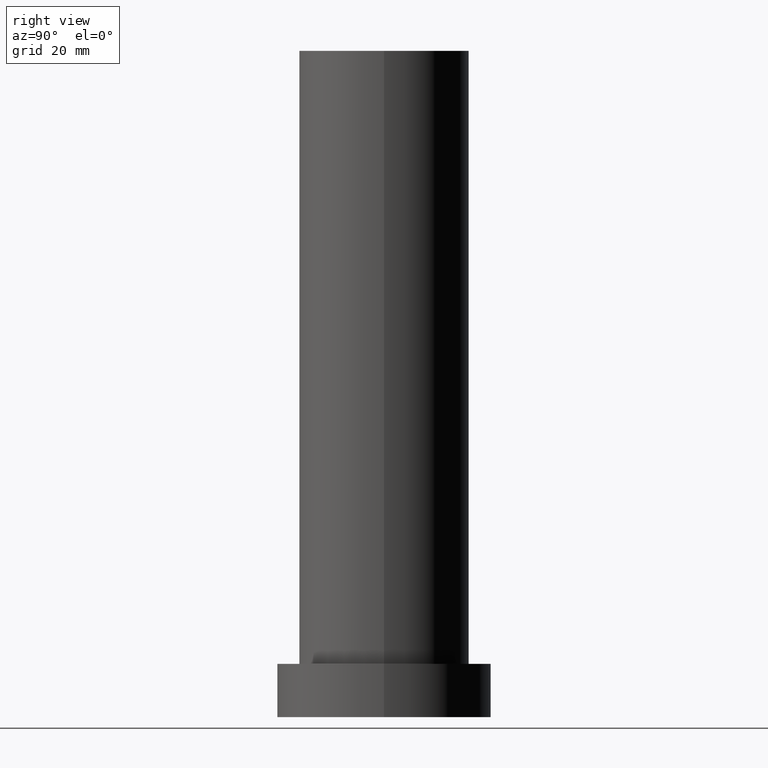
[diagram: clean part render]
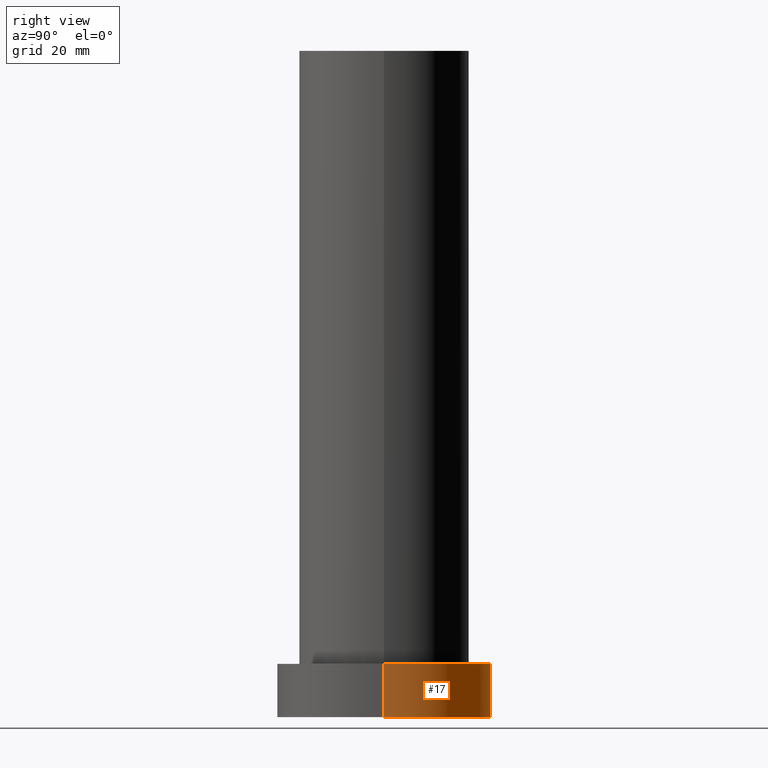
[diagram: same view with one face highlighted and labeled with its STEP entity id]
A machine part, right view. The second image highlights one B-rep face of the part: STEP entity #17.
In plain terms, the highlighted cylindrical surface (partial cylindrical patch) has radius 20 mm, axis along (-0, -0, -1).
Its self-contained STEP definition (entity closure, byte-faithful):
#7 = EDGE_CURVE ( 'NONE', #215, #85, #124, .T. ) ;
#16 = CARTESIAN_POINT ( 'NONE',  ( 20.00000000000000000, 2.449293598294706513E-15, 10.00000000000000000 ) ) ;
#17 = ADVANCED_FACE ( 'NONE', ( #18 ), #83, .T. ) ;
#18 = FACE_OUTER_BOUND ( 'NONE', #99, .T. ) ;
#26 = VERTEX_POINT ( 'NONE', #16 ) ;
#33 = LINE ( 'NONE', #162, #84 ) ;
#35 = EDGE_CURVE ( 'NONE', #26, #119, #74, .T. ) ;
#36 = ORIENTED_EDGE ( 'NONE', *, *, #7, .T. ) ;
#44 = CARTESIAN_POINT ( 'NONE',  ( -20.00000000000000000, 0.000000000000000000, 10.00000000000000000 ) ) ;
#56 = EDGE_CURVE ( 'NONE', #26, #215, #33, .T. ) ;
#63 = DIRECTION ( 'NONE',  ( -0.000000000000000000, -0.000000000000000000, -1.000000000000000000 ) ) ;
#65 = DIRECTION ( 'NONE',  ( -0.000000000000000000, -0.000000000000000000, -1.000000000000000000 ) ) ;
#74 = CIRCLE ( 'NONE', #221, 20.00000000000000000 ) ;
#83 = CYLINDRICAL_SURFACE ( 'NONE', #173, 20.00000000000000000 ) ;
#84 = VECTOR ( 'NONE', #242, 1000.000000000000000 ) ;
#85 = VERTEX_POINT ( 'NONE', #109 ) ;
#96 = VECTOR ( 'NONE', #65, 1000.000000000000000 ) ;
#99 = EDGE_LOOP ( 'NONE', ( #156, #110, #36, #253 ) ) ;
#109 = CARTESIAN_POINT ( 'NONE',  ( -20.00000000000000000, 0.000000000000000000, 0.000000000000000000 ) ) ;
#110 = ORIENTED_EDGE ( 'NONE', *, *, #56, .T. ) ;
#119 = VERTEX_POINT ( 'NONE', #148 ) ;
#121 = CARTESIAN_POINT ( 'NONE',  ( 0.000000000000000000, 0.000000000000000000, 10.00000000000000000 ) ) ;
#124 = CIRCLE ( 'NONE', #133, 20.00000000000000000 ) ;
#133 = AXIS2_PLACEMENT_3D ( 'NONE', #250, #178, #159 ) ;
#145 = CARTESIAN_POINT ( 'NONE',  ( 0.000000000000000000, 0.000000000000000000, 10.00000000000000000 ) ) ;
#148 = CARTESIAN_POINT ( 'NONE',  ( -20.00000000000000000, 0.000000000000000000, 10.00000000000000000 ) ) ;
#156 = ORIENTED_EDGE ( 'NONE', *, *, #35, .F. ) ;
#159 = DIRECTION ( 'NONE',  ( 1.000000000000000000, 0.000000000000000000, 0.000000000000000000 ) ) ;
#161 = DIRECTION ( 'NONE',  ( 0.000000000000000000, 0.000000000000000000, 1.000000000000000000 ) ) ;
#162 = CARTESIAN_POINT ( 'NONE',  ( 20.00000000000000000, 2.449293598294706513E-15, 10.00000000000000000 ) ) ;
#167 = CARTESIAN_POINT ( 'NONE',  ( 20.00000000000000000, 2.449293598294706513E-15, 0.000000000000000000 ) ) ;
#173 = AXIS2_PLACEMENT_3D ( 'NONE', #121, #63, #198 ) ;
#178 = DIRECTION ( 'NONE',  ( 0.000000000000000000, 0.000000000000000000, 1.000000000000000000 ) ) ;
#182 = LINE ( 'NONE', #44, #96 ) ;
#198 = DIRECTION ( 'NONE',  ( -1.000000000000000000, 0.000000000000000000, 0.000000000000000000 ) ) ;
#215 = VERTEX_POINT ( 'NONE', #167 ) ;
#221 = AXIS2_PLACEMENT_3D ( 'NONE', #145, #161, #222 ) ;
#222 = DIRECTION ( 'NONE',  ( 1.000000000000000000, 0.000000000000000000, 0.000000000000000000 ) ) ;
#241 = EDGE_CURVE ( 'NONE', #119, #85, #182, .T. ) ;
#242 = DIRECTION ( 'NONE',  ( -0.000000000000000000, -0.000000000000000000, -1.000000000000000000 ) ) ;
#250 = CARTESIAN_POINT ( 'NONE',  ( 0.000000000000000000, 0.000000000000000000, 0.000000000000000000 ) ) ;
#253 = ORIENTED_EDGE ( 'NONE', *, *, #241, .F. ) ;